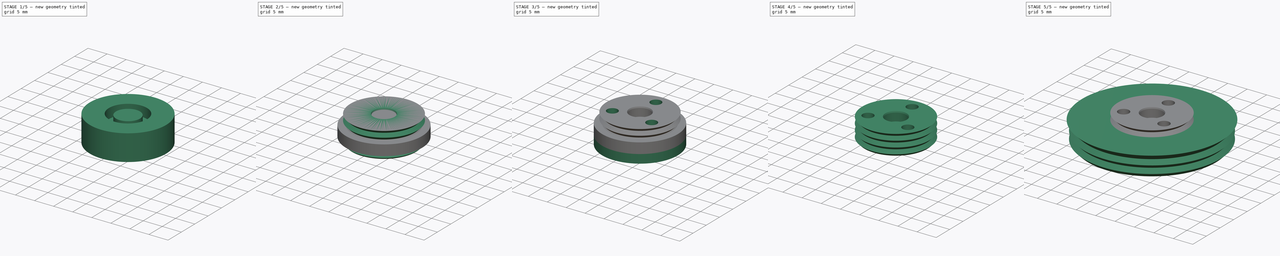
[diagram: build sequence overview — one tinted view per stage of 5, left to right]
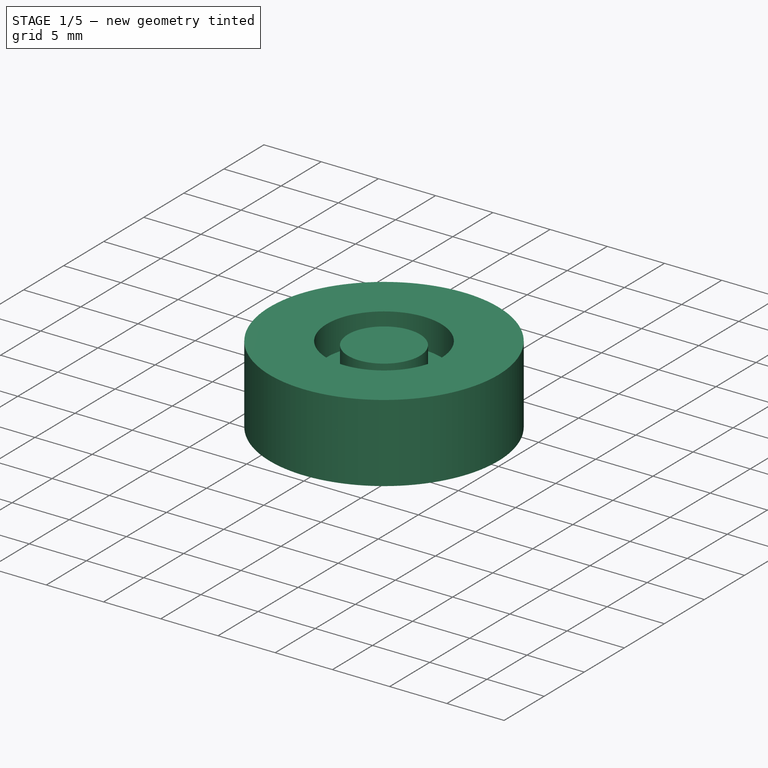
[diagram: stage 1 of 5 — iso view after this stage's code; geometry added in this stage tinted green]
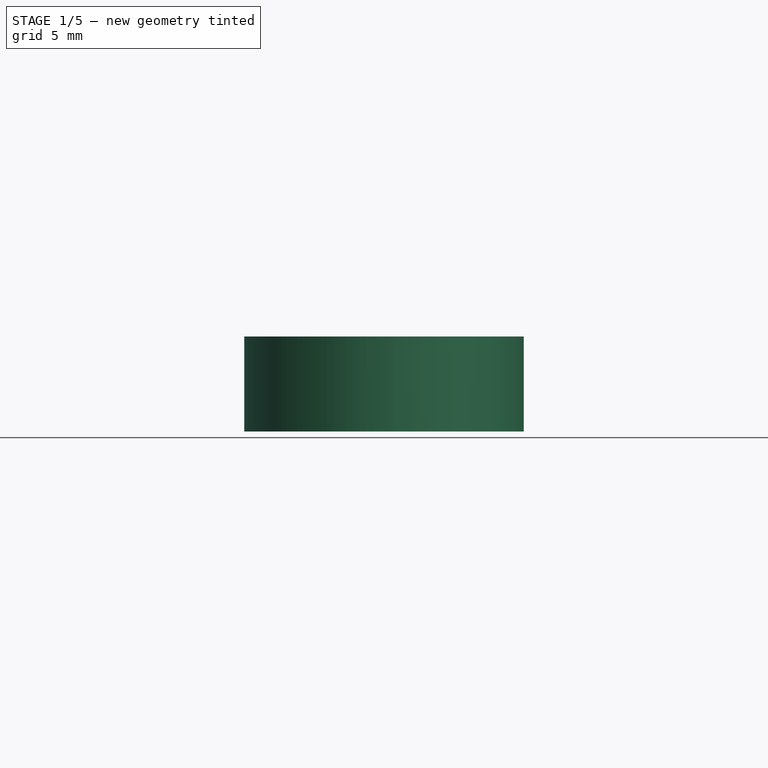
[diagram: stage 1 of 5 — front view after this stage's code; geometry added in this stage tinted green]
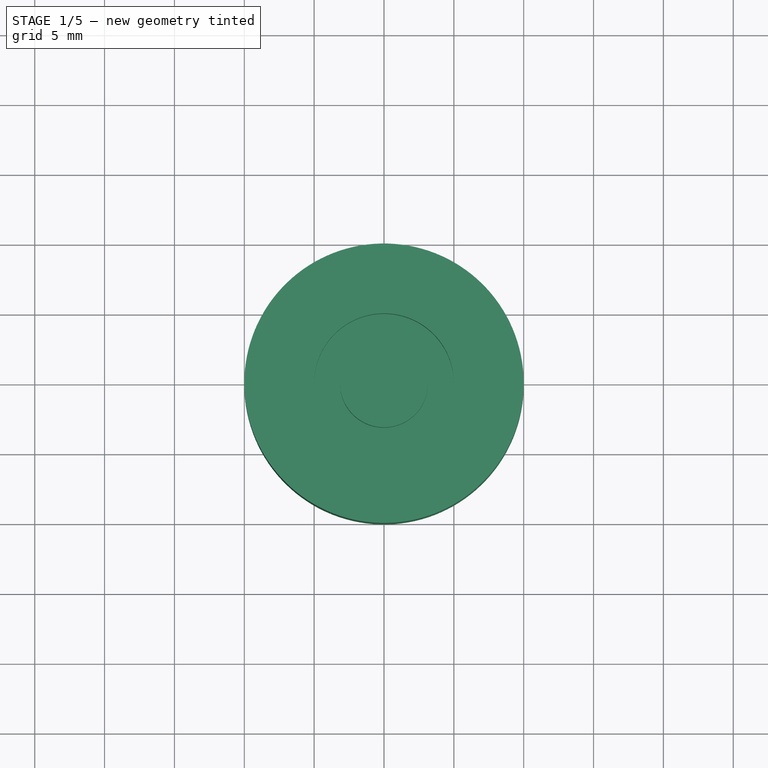
[diagram: stage 1 of 5 — top view after this stage's code; geometry added in this stage tinted green]
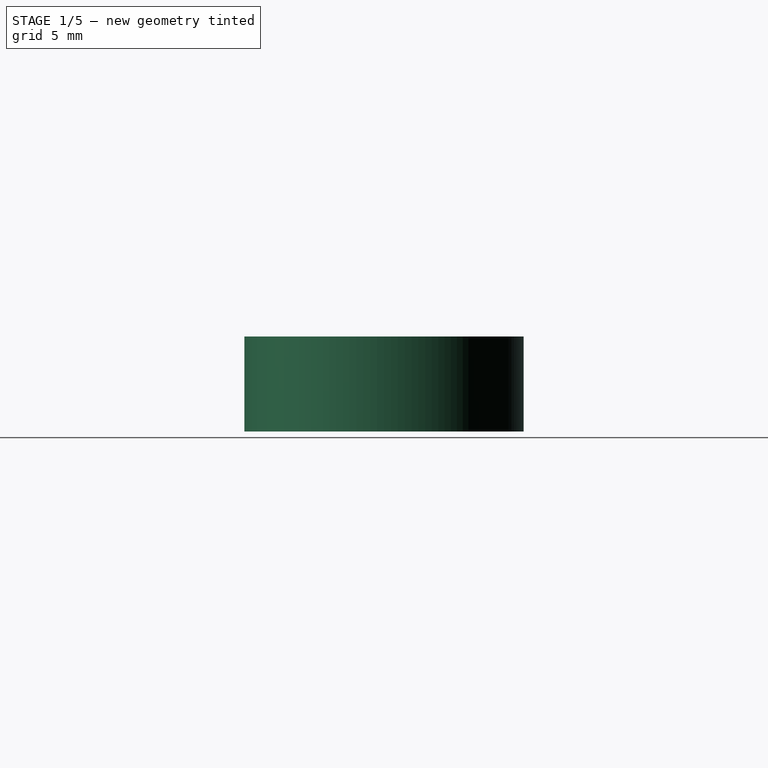
[diagram: stage 1 of 5 — right view after this stage's code; geometry added in this stage tinted green]
FCSTD DOCUMENT  (FreeCAD 0.16RUnknown)
Label: LAQ0202nLAP0617
License: All rights reserved
LicenseURL: http://en.wikipedia.org/wiki/All_rights_reserved
objects: Part::FeaturePython×14, Sketcher::SketchObject×8, PartDesign::Revolution×7, Part::Cut×5, App::DocumentObjectGroup×5, Part::MultiCommon×3, Spreadsheet::Sheet×1, Part::MultiFuse×1, Part::Cylinder×1
note: 46 computed .brp shape members not serialized (recipe doc carries the construction recipe); baked Part::Feature solids carry a one-line shape summary decoded from their .brp

FEATURE [Sketcher::SketchObject] Sketch002  label="InnerGrooveDom"
  Placement = pos=(0,0,0) rot=(1,0,0;1.5708rad)
  sketch-geometry (4):
    g0: LineSegment StartX=5 StartY=7.2 StartZ=0 EndX=10 EndY=7.2 EndZ=0
    g1: LineSegment StartX=10 StartY=7.2 StartZ=0 EndX=10 EndY=0.4 EndZ=0
    g2: LineSegment StartX=10 StartY=0.4 StartZ=0 EndX=5 EndY=0.4 EndZ=0
    g3: LineSegment StartX=5 StartY=0.4 StartZ=0 EndX=5 EndY=7.2 EndZ=0
  constraints (12):
    c: Coincident(g0,g1)
    c: Coincident(g1,g2)
    c: Coincident(g2,g3)
    c: Coincident(g3,g0)
    c: Horizontal(g0)
    c: Horizontal(g2)
    c: Vertical(g1)
    c: Vertical(g3)
    c: DistanceX(g0) = 5
    c: DistanceY(g0) = 7.2
    c: DistanceY(g2) = 0.4
    c: DistanceX(g0) = 10
FEATURE [PartDesign::Revolution] Revolution002  label="InnerGrooveDom001"
  Angle = 360
  Axis = (0,0,1)
  Base = (0,0,0)
  Placement = pos=(0,0,0) rot=(1,0,0;1.5708rad)
  ReferenceAxis = -> Sketch002 [V_Axis]
  Reversed = true
  Sketch = -> Sketch002
FEATURE [Sketcher::SketchObject] Sketch007  label="LAQ0201"
  Placement = pos=(0,0,0) rot=(1,0,0;1.5708rad)
  expr: Constraints[12] = LAQ0202nPS2LongLong.Constraints.LAQPos
  sketch-geometry (6):
    g0: ArcOfCircle CenterX=0 CenterY=0.937428 CenterZ=0 NormalX=0 NormalY=0 NormalZ=1 Radius=1.7281 StartAngle=0.519629 EndAngle=1.5708
    g1: LineSegment StartX=0 StartY=2.66553 StartZ=0 EndX=0 EndY=0.795532 EndZ=0
    g2: LineSegment StartX=1.5 StartY=1.79553 StartZ=0 EndX=1.5 EndY=0.795532 EndZ=0
    g3: GeomPoint [constr] X=0 Y=3.75553 Z=0
    g4: GeomPoint [constr] X=0 Y=1.75553 Z=0
    g5: LineSegment StartX=0 StartY=0.795532 StartZ=0 EndX=1.5 EndY=0.795532 EndZ=0
  constraints (19):
    c: Coincident(g0,g2)
    c: Coincident(g0,g1)
    c: Vertical(g2)
    c: Vertical(g1)
    c: PointOnObject(g0,g1)
    c: PointOnObject(g0,g-2)
    c: DistanceY(g1,g1) = 1.87
    c: DistanceX(g2) = 1.5
    c: PointOnObject(g3,g1)
    c: PointOnObject(g4,g1)
    c: DistanceY(g4,g3) = 2
    c: DistanceY(g0,g3) = 1.09
    c: DistanceY(g4) = 1.75553
    c: Coincident(g2,g5)
    c: Coincident(g1,g5)
    c: Horizontal(g5)
    c: DistanceY(g2,g2) = 1
    c: DistanceY(g0) = 1.79553  'LAQEdge'
    c: DistanceY(g0) = 2.66553  'LAQtop'
FEATURE [PartDesign::Revolution] Revolution006  label="LAQ"
  Angle = 360
  Axis = (0,0,1)
  Base = (0,0,0)
  Placement = pos=(0,0,0) rot=(1,0,0;1.5708rad)
  ReferenceAxis = -> Sketch007 [V_Axis]
  Reversed = true
  Sketch = -> Sketch007
FEATURE [Part::FeaturePython] Clone008  label="Clone of LAQ"  # Draft clone (typed FeaturePython)
  Objects = -> [Revolution006]
  Placement = pos=(0,0,0) rot=(1,0,0;1.5708rad)
  Scale = (1,1,1)
FEATURE [Sketcher::SketchObject] Sketch017  label="LAQ0202nPS2Long"
  Placement = pos=(0,0,0) rot=(1,0,0;1.5708rad)
  sketch-geometry (21):
    g0: LineSegment StartX=-1 StartY=1.72674 StartZ=0 EndX=1 EndY=1.72674 EndZ=0
    g1: GeomPoint [constr] X=0 Y=3.72674 Z=0
    g2: LineSegment StartX=0 StartY=0 StartZ=0 EndX=0.2 EndY=0 EndZ=0
    g3: LineSegment [constr] StartX=0 StartY=3.72674 StartZ=0 EndX=0.2 EndY=1.72674 EndZ=0
    g4: LineSegment [constr] StartX=0.2 StartY=1.72674 StartZ=0 EndX=0.2 EndY=0 EndZ=0
    g5: LineSegment [constr] StartX=0.2 StartY=0 StartZ=0 EndX=0 EndY=1.72674 EndZ=0
    g6: LineSegment StartX=0 StartY=-10.9114 StartZ=0 EndX=1.46381 EndY=-10.9114 EndZ=0
    g7: LineSegment StartX=4 StartY=5.72674 StartZ=0 EndX=-4 EndY=5.72674 EndZ=0
    g8: LineSegment [constr] StartX=0 StartY=5.72674 StartZ=0 EndX=1.46381 EndY=-10.9114 EndZ=0
    g9: LineSegment [constr] StartX=1.46381 StartY=-10.9114 StartZ=0 EndX=1.46381 EndY=5.72674 EndZ=0
    g10: LineSegment [constr] StartX=1.46381 StartY=5.72674 StartZ=0 EndX=0 EndY=23.1267 EndZ=0
    g11: LineSegment StartX=0 StartY=-374.273 StartZ=0 EndX=33.4322 EndY=-374.273 EndZ=0
    g12: LineSegment StartX=-2 StartY=6.72674 StartZ=0 EndX=2 EndY=6.72674 EndZ=0
    g13: LineSegment StartX=0 StartY=0 StartZ=0 EndX=1 EndY=1.72674 EndZ=0
    g14: LineSegment [constr] StartX=0 StartY=5.72674 StartZ=0 EndX=1 EndY=1.72674 EndZ=0
    g15: LineSegment [constr] StartX=1 StartY=1.72674 StartZ=0 EndX=1 EndY=5.72674 EndZ=0
    g16: LineSegment [constr] StartX=1 StartY=5.72674 StartZ=0 EndX=0 EndY=23.1267 EndZ=0
    g17: LineSegment StartX=0 StartY=0.532712 StartZ=0 EndX=1.29851 EndY=0.532712 EndZ=0
    g18: LineSegment [constr] StartX=8 StartY=1.72674 StartZ=0 EndX=2 EndY=6.72674 EndZ=0
    g19: GeomPoint [constr] X=0 Y=8.39341 Z=0
    g20: LineSegment StartX=0 StartY=8.39341 StartZ=0 EndX=63.2127 EndY=-374.273 EndZ=0
  constraints (68):
    c: Symmetric(g0,g0,g-2)
    c: DistanceX(g0,g0) = 2
    c: PointOnObject(g1,g-2)
    c: DistanceY(g0,g1) = 2
    c: DistanceX(g2,g2) = 0.2  'Constraint19'
    c: Horizontal(g2)  'Constraint26'
    c: PointOnObject(g2,g-2)  'Constraint24'
    c: DistanceY(g2) = 0  'Constraint23'
    c: DistanceY(g0) = 1.72674  'LAQPos'
    c: PointOnObject(g5,g0)
    c: PointOnObject(g5,g-2)
    c: Coincident(g3,g4)
    c: PointOnObject(g3,g0)
    c: Vertical(g4)
    c: Coincident(g4,g5)
    c: Coincident(g2,g4)
    c: Coincident(g1,g3)
    c: PointOnObject(g6,g-2)
    c: Horizontal(g6)
    c: PointOnObject(g6,g3)
    c: PointOnObject(g6,g5)
    c: DistanceY(g6) = -10.9114
    c: DistanceX(g6,g6) = 1.46381
    c: Symmetric(g7,g7,g-2)
    c: Coincident(g8,g9)
    c: Coincident(g9,g10)
    c: PointOnObject(g8,g7)
    c: PointOnObject(g8,g-2)
    c: Vertical(g9)
    c: PointOnObject(g9,g7)
    c: Coincident(g8,g6)
    c: PointOnObject(g10,g-2)
    c: DistanceY(g7,g10) = 17.4
    c: DistanceY(g0,g7) = 4
    c: DistanceY(g7) = 5.72674  'PS2Pos'
    c: Horizontal(g11)
    c: PointOnObject(g11,g10)
    c: PointOnObject(g11,g8)
    c: DistanceY(g11,g7) = 380
    c: PointOnObject(g11,g-2)
    c: DistanceX(g7,g7) = 8
    c: DistanceX(g11,g11) = 33.4322  'Final'
    c: Symmetric(g12,g12,g-2)
    c: DistanceX(g12,g12) = 4
    c: DistanceY(g7,g12) = 1
    c: Coincident(g13,g-1)
    c: PointOnObject(g13,g0)
    c: DistanceX(g13) = 1
    c: Coincident(g14,g15)
    c: Coincident(g15,g16)
    c: Coincident(g10,g16)
    c: PointOnObject(g15,g7)
    c: Vertical(g15)
    c: Coincident(g8,g14)
    c: Coincident(g14,g0)
    c: PointOnObject(g17,g-2)
    c: Horizontal(g17)
    c: PointOnObject(g17,g14)
    c: PointOnObject(g17,g16)
    c: Coincident(g18,g12)
    c: DistanceY(g18,g18) = 5
    c: DistanceX(g18) = 8
    c: PointOnObject(g19,g18)
    c: PointOnObject(g19,g-2)
    c: Coincident(g19,g20)
    c: PointOnObject(g17,g20)
    c: PointOnObject(g20,g11)
    c: DistanceY(g0,g7) = 4
FEATURE [Sketcher::SketchObject] Sketch018  label="PS2Long"
  Placement = pos=(0,0,0) rot=(1,0,0;1.5708rad)
  expr: Constraints[12] = LAQ0202nPS2Long.Constraints.PS2Pos
  sketch-geometry (5):
    g0: LineSegment StartX=0 StartY=6.87674 StartZ=0 EndX=3.15 EndY=6.87674 EndZ=0
    g1: LineSegment StartX=3.15 StartY=6.87674 StartZ=0 EndX=3.15 EndY=4.57674 EndZ=0
    g2: LineSegment StartX=3.15 StartY=4.57674 StartZ=0 EndX=0 EndY=4.57674 EndZ=0
    g3: LineSegment StartX=0 StartY=4.57674 StartZ=0 EndX=0 EndY=6.87674 EndZ=0
    g4: GeomPoint [constr] X=0 Y=5.72674 Z=0
  constraints (14):
    c: Coincident(g0,g1)
    c: Coincident(g1,g2)
    c: Coincident(g2,g3)
    c: Coincident(g3,g0)
    c: Horizontal(g0)
    c: Horizontal(g2)
    c: Vertical(g1)
    c: Vertical(g3)
    c: DistanceY(g3,g3) = 2.3
    c: DistanceX(g0,g0) = 3.15
    c: PointOnObject(g2,g-2)
    c: Symmetric(g0,g2,g4)
    c: DistanceY(g4) = 5.72674
    c: DistanceY(g2) = 4.57674  'PS2Lower'
FEATURE [PartDesign::Revolution] Revolution007  label="PS2Long001"
  Angle = 360
  Axis = (0,0,1)
  Base = (0,0,0)
  Placement = pos=(0,0,0) rot=(1,0,0;1.5708rad)
  ReferenceAxis = -> Sketch018 [V_Axis]
  Reversed = true
  Sketch = -> Sketch018
FEATURE [App::DocumentObjectGroup] Group  label="Reference"
  Group = -> [Revolution006,Sketch017,FlexiRing_01]
FEATURE [Sketcher::SketchObject] Sketch019  label="MiddleDom"
  Placement = pos=(0,0,0) rot=(1,0,0;1.5708rad)
  expr: Constraints[9] = PS2Long.Constraints.PS2Lower
  expr: Constraints[8] = LAQ0201.Constraints.LAQEdge
  sketch-geometry (4):
    g0: LineSegment StartX=0 StartY=4.57674 StartZ=0 EndX=10 EndY=4.57674 EndZ=0
    g1: LineSegment StartX=10 StartY=4.57674 StartZ=0 EndX=10 EndY=1.79553 EndZ=0
    g2: LineSegment StartX=10 StartY=1.79553 StartZ=0 EndX=0 EndY=1.79553 EndZ=0
    g3: LineSegment StartX=0 StartY=1.79553 StartZ=0 EndX=0 EndY=4.57674 EndZ=0
  constraints (12):
    c: Coincident(g0,g1)
    c: Coincident(g1,g2)
    c: Coincident(g2,g3)
    c: Coincident(g3,g0)
    c: Horizontal(g0)
    c: Horizontal(g2)
    c: Vertical(g1)
    c: Vertical(g3)
    c: DistanceY(g2) = 1.79553
    c: DistanceY(g0) = 4.57674
    c: PointOnObject(g2,g-2)
    c: DistanceX(g0) = 10
FEATURE [PartDesign::Revolution] Revolution008  label="MiddleDom001"
  Angle = 360
  Axis = (0,0,1)
  Base = (0,0,0)
  Placement = pos=(0,0,0) rot=(1,0,0;1.5708rad)
  ReferenceAxis = -> Sketch019 [V_Axis]
  Reversed = true
  Sketch = -> Sketch019
FEATURE [Part::FeaturePython] Clone010  label="Clone of MiddleDom001"  # Draft clone (typed FeaturePython)
  Objects = -> [Revolution008]
  Placement = pos=(0,0,0) rot=(1,0,0;1.5708rad)
  Scale = (1,1,1)
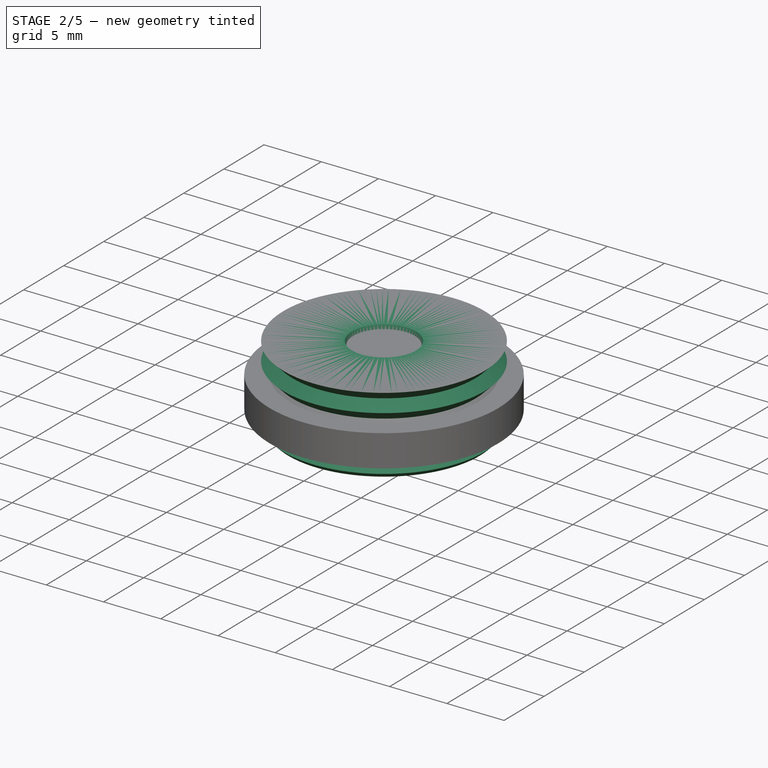
[diagram: stage 2 of 5 — iso view after this stage's code; geometry added in this stage tinted green]
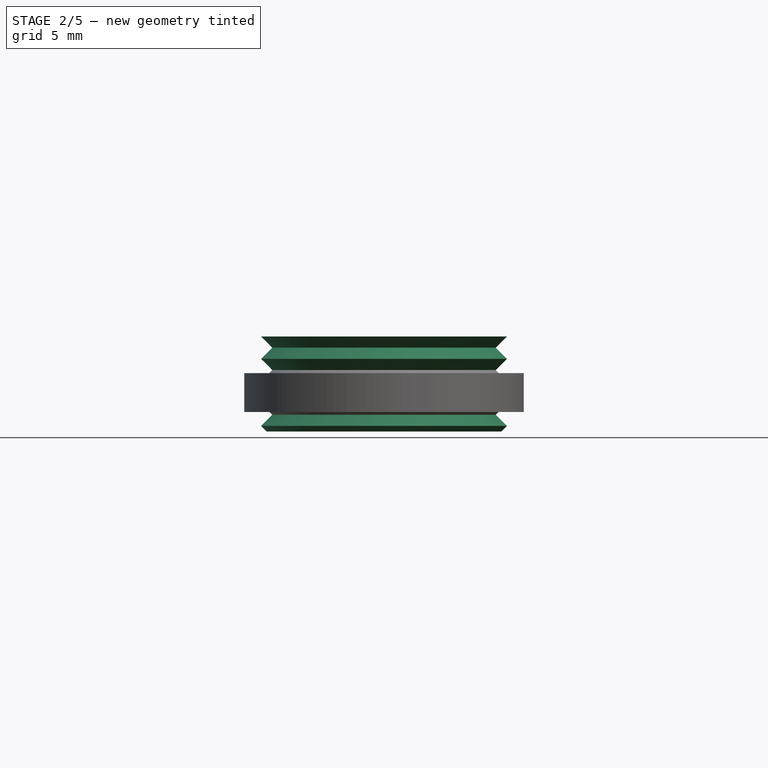
[diagram: stage 2 of 5 — front view after this stage's code; geometry added in this stage tinted green]
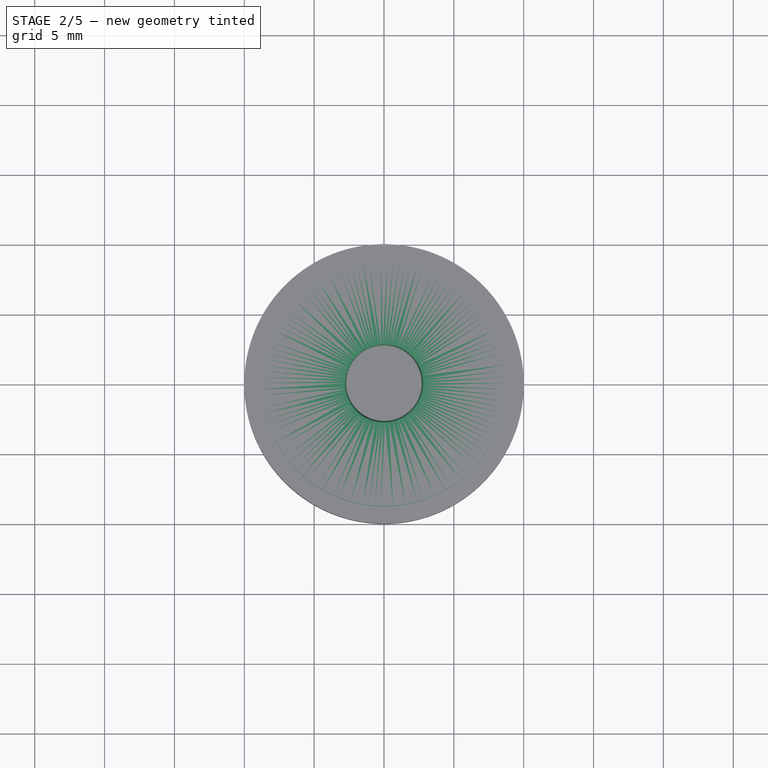
[diagram: stage 2 of 5 — top view after this stage's code; geometry added in this stage tinted green]
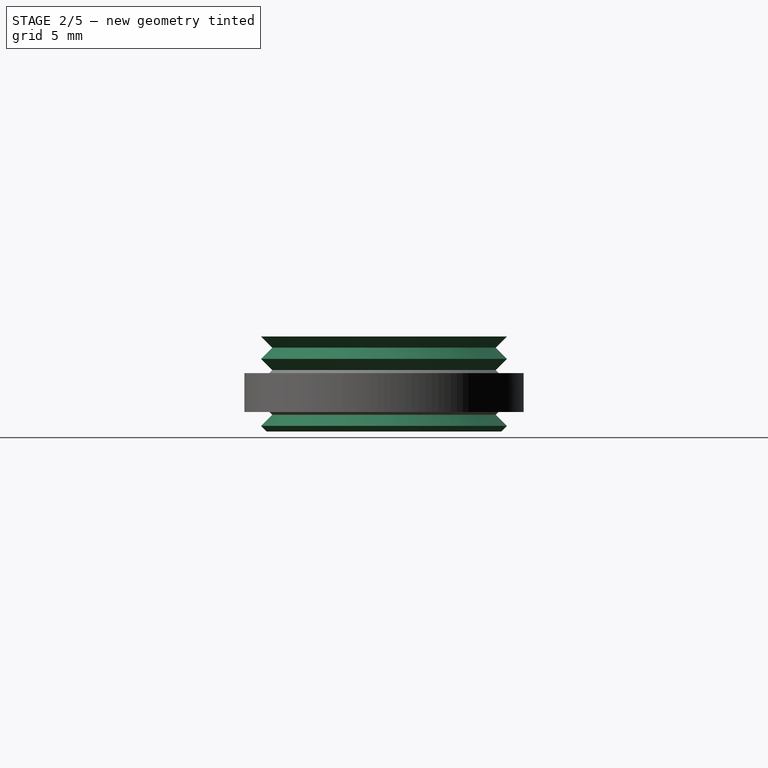
[diagram: stage 2 of 5 — right view after this stage's code; geometry added in this stage tinted green]
FEATURE [Spreadsheet::Sheet] Spreadsheet  label="pars"
  cells = A1=Bolts and Nuts; B1=Value; D1=Components; E1=Value; A2=Thread Tight Tolerance (Radius, ratio); B2(ThrTighRatio)=0.96; D2=Tight Cilinder Tolerances (Radius, mm); E2(CilTight)=0.1; A3=Thread Tight Tolerance (Radius, mm); B3(ThrTightmm)=0.1; D3=Loose Cilinder Tolerances (Radius, mm); E3(CilLoose)=0.1; A5=Nut Slot Width Clearance (mm); B5(NutWidthClearmm)=0.1; A6=Nut Slot Thickess Clearance (mm); B6(NutThickClearmm)=0.1; A13=Particular parameters; B13=Value; A14=Plate Thickness; B14(PlateThick)=4; A15=Lip Thickness; B15(LipThick)=0.8; A16=Channel Diameter; B16(ChanDia)=2.5; A17=Lens Radius Clearance; B17(LensRadClear)=0.05; A18=Lens Lenght Clearance; B18(LensLenClear)=0.05
FEATURE [Sketcher::SketchObject] Sketch  label="Main"
  Placement = pos=(0,0,0) rot=(1,0,0;1.5708rad)
  sketch-geometry (5):
    g0: LineSegment StartX=1.2 StartY=0.4 StartZ=0 EndX=8 EndY=0.4 EndZ=0
    g1: LineSegment StartX=8 StartY=0.4 StartZ=0 EndX=8 EndY=7.2 EndZ=0
    g2: LineSegment StartX=8 StartY=7.2 StartZ=0 EndX=2.8 EndY=7.2 EndZ=0
    g3: LineSegment StartX=1.2 StartY=0.4 StartZ=0 EndX=1.2 EndY=2.2 EndZ=0
    g4: LineSegment StartX=1.2 StartY=2.2 StartZ=0 EndX=2.8 EndY=7.2 EndZ=0
  constraints (15):
    c: Coincident(g0,g1)
    c: Horizontal(g2)
    c: Horizontal(g0)
    c: Vertical(g1)
    c: DistanceX(g1) = 8
    c: DistanceX(g0) = 1.2
    c: Coincident(g1,g2)
    c: Coincident(g3,g4)
    c: Coincident(g2,g4)
    c: Vertical(g3)
    c: Coincident(g0,g3)
    c: DistanceY(g0) = 0.4
    c: DistanceX(g2) = 2.8
    c: DistanceY(g3) = 2.2
    c: DistanceY(g1) = 7.2
FEATURE [PartDesign::Revolution] Revolution  label="Main001"
  Angle = 360
  Axis = (0,0,1)
  Base = (0,0,0)
  Placement = pos=(0,0,0) rot=(1,0,0;1.5708rad)
  ReferenceAxis = -> Sketch [V_Axis]
  Reversed = true
  Sketch = -> Sketch
FEATURE [Sketcher::SketchObject] Sketch001  label="OuterGroove"
  Placement = pos=(0,0,0) rot=(1,0,0;1.5708rad)
  sketch-geometry (6):
    g0: LineSegment StartX=4 StartY=8 StartZ=0 EndX=4 EndY=6.4 EndZ=0
    g1: LineSegment StartX=4 StartY=6.4 StartZ=0 EndX=8 EndY=6.4 EndZ=0
    g2: LineSegment StartX=8 StartY=6.4 StartZ=0 EndX=8.8 EndY=7.2 EndZ=0
    g3: LineSegment StartX=8.8 StartY=7.2 StartZ=0 EndX=8 EndY=8 EndZ=0
    g4: LineSegment StartX=8 StartY=8 StartZ=0 EndX=4 EndY=8 EndZ=0
    g5: LineSegment [constr] StartX=4 StartY=7.2 StartZ=0 EndX=8.8 EndY=7.2 EndZ=0
  constraints (17):
    c: Coincident(g0,g1)
    c: Coincident(g1,g2)
    c: Coincident(g2,g3)
    c: Coincident(g3,g4)
    c: Coincident(g4,g0)
    c: Horizontal(g5)
    c: Horizontal(g1)
    c: Horizontal(g4)
    c: Vertical(g0)
    c: Perpendicular(g2,g3)
    c: PointOnObject(g5,g0)
    c: Coincident(g5,g2)
    c: Symmetric(g3,g1,g5)
    c: DistanceY(g0,g0) = 1.6
    c: DistanceX(g0) = 4
    c: DistanceY(g0) = 8
    c: DistanceX(g3) = 8
FEATURE [PartDesign::Revolution] Revolution001  label="OuterGroove001"
  Angle = 360
  Axis = (0,0,1)
  Base = (0,0,0)
  Placement = pos=(0,0,0) rot=(1,0,0;1.5708rad)
  ReferenceAxis = -> Sketch001 [V_Axis]
  Reversed = true
  Sketch = -> Sketch001
FEATURE [Part::FeaturePython] Array  label="OuterGrooves"  # Draft array (typed FeaturePython)
  Angle = 360
  ArrayType = 0
  Axis = (0,0,1)
  Base = -> Revolution001
  Center = (0,0,0)
  Fuse = true
  IntervalAxis = (0,0,0)
  IntervalX = (1,0,0)
  IntervalY = (0,1,0)
  IntervalZ = (0,0,-1.6)
  NumberPolar = 1
  NumberX = 1
  NumberY = 1
  NumberZ = 6
FEATURE [Part::MultiCommon] Common  label="InnerGrooveTool"
  Shapes = -> [Array,Revolution002]
FEATURE [Part::MultiFuse] Fusion001  label="GrooveAdd"
  Shapes = -> [Revolution,Common]
FEATURE [Part::FeaturePython] refine  label="refine_GrooveAdd"  # WARN: FeaturePython — macro-defined, semantics opaque (R4)
  Base = -> Fusion001
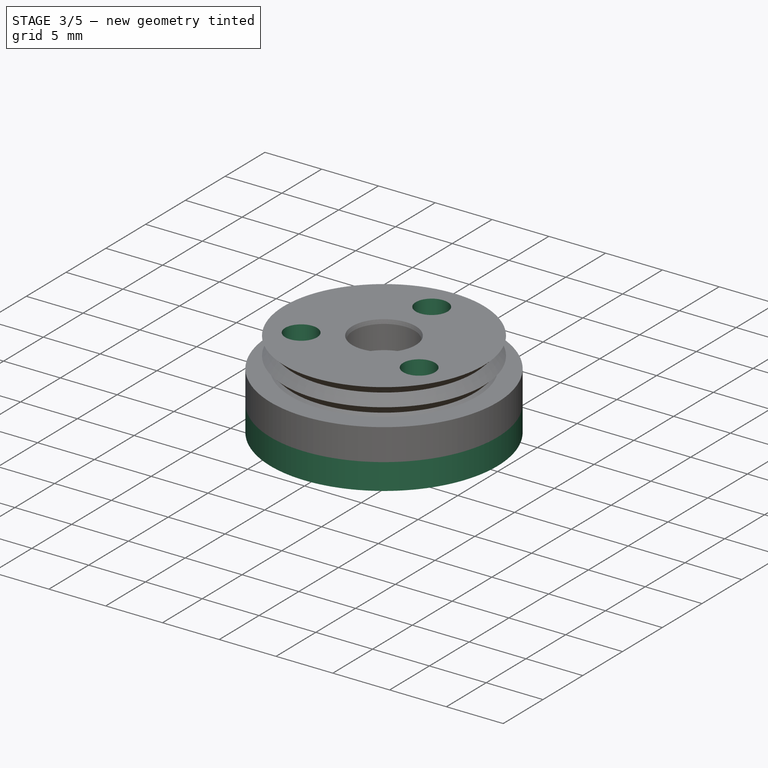
[diagram: stage 3 of 5 — iso view after this stage's code; geometry added in this stage tinted green]
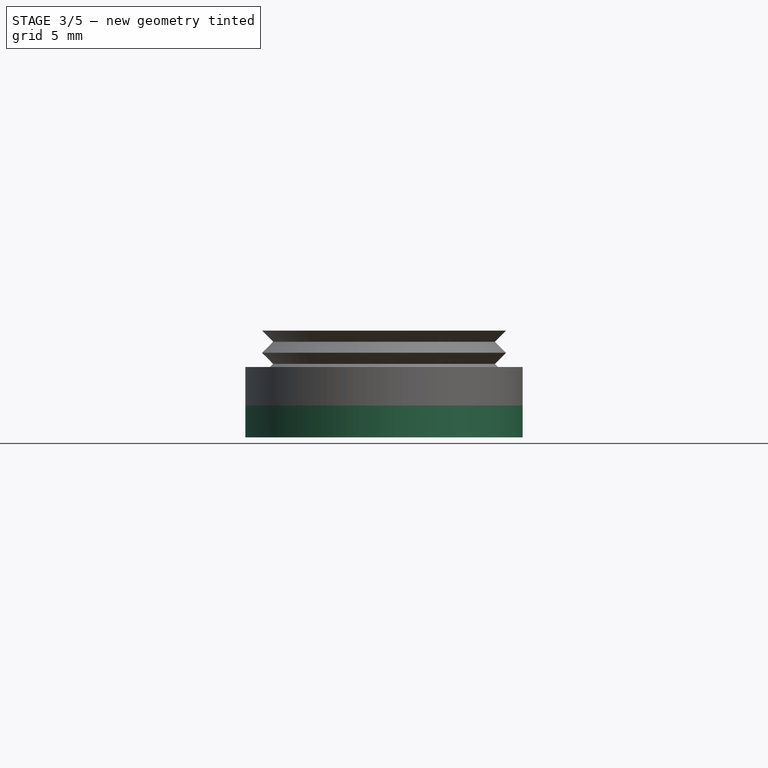
[diagram: stage 3 of 5 — front view after this stage's code; geometry added in this stage tinted green]
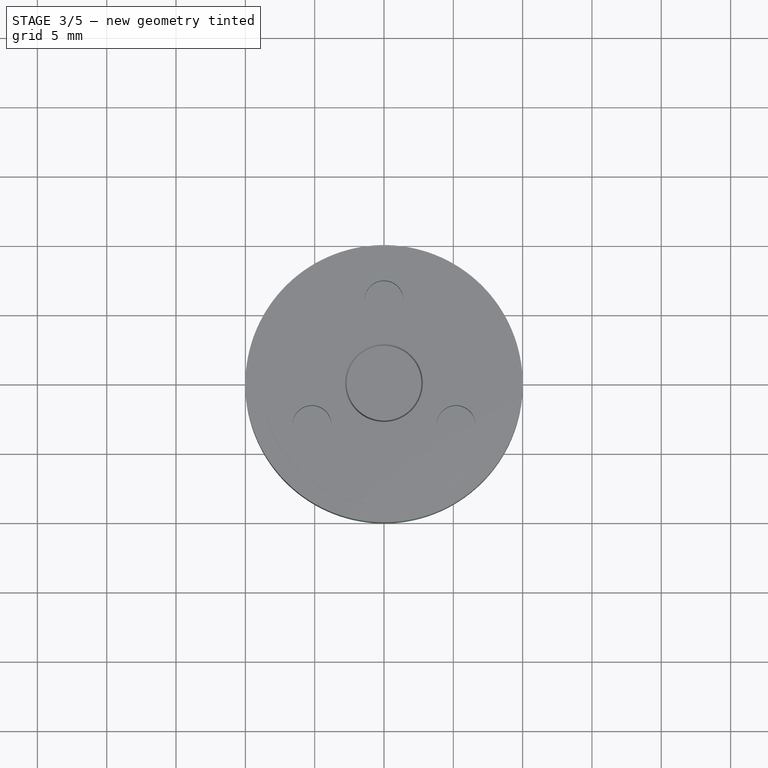
[diagram: stage 3 of 5 — top view after this stage's code; geometry added in this stage tinted green]
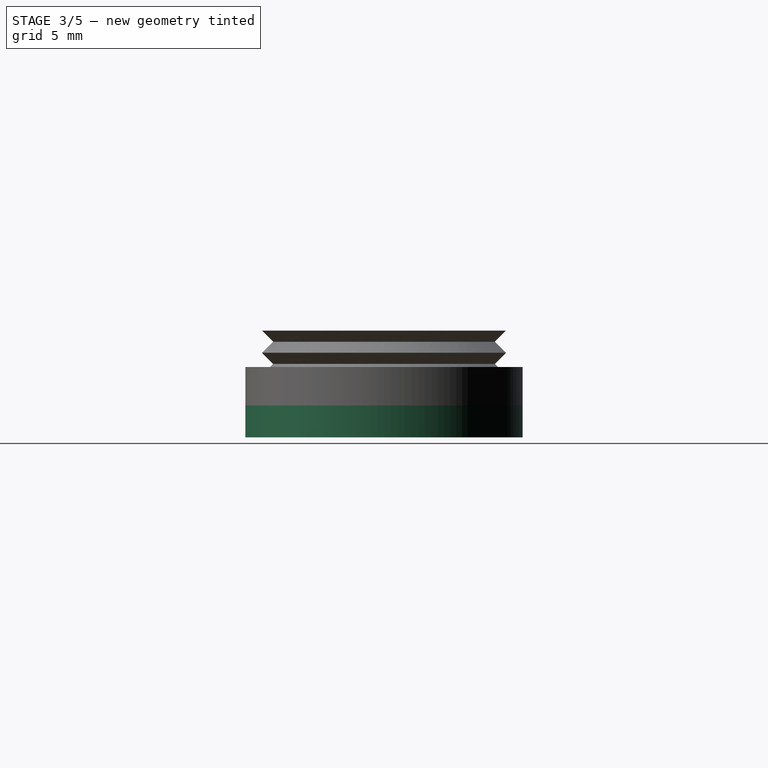
[diagram: stage 3 of 5 — right view after this stage's code; geometry added in this stage tinted green]
FEATURE [Sketcher::SketchObject] Sketch005  label="LowerDomain"
  Placement = pos=(0,0,0) rot=(1,0,0;1.5708rad)
  expr: Constraints[10] = LAQ0201.Constraints.LAQEdge
  sketch-geometry (4):
    g0: LineSegment StartX=10 StartY=-0.5 StartZ=0 EndX=0 EndY=-0.5 EndZ=0
    g1: LineSegment StartX=0 StartY=-0.5 StartZ=0 EndX=0 EndY=1.79553 EndZ=0
    g2: LineSegment StartX=0 StartY=1.79553 StartZ=0 EndX=10 EndY=1.79553 EndZ=0
    g3: LineSegment StartX=10 StartY=1.79553 StartZ=0 EndX=10 EndY=-0.5 EndZ=0
  constraints (12):
    c: Coincident(g0,g1)
    c: Coincident(g1,g2)
    c: Coincident(g2,g3)
    c: Coincident(g3,g0)
    c: Horizontal(g0)
    c: Horizontal(g2)
    c: Vertical(g1)
    c: Vertical(g3)
    c: PointOnObject(g0,g-2)
    c: DistanceY(g0) = -0.5
    c: DistanceY(g1) = 1.79553
    c: DistanceX(g0,g0) = 10
FEATURE [PartDesign::Revolution] Revolution004  label="LowerDomain001"
  Angle = 360
  Axis = (0,0,1)
  Base = (0,0,0)
  Placement = pos=(0,0,0) rot=(1,0,0;1.5708rad)
  ReferenceAxis = -> Sketch005 [V_Axis]
  Reversed = true
  Sketch = -> Sketch005
FEATURE [Part::Cylinder] Cylinder  label="BoltHole"
  Angle = 360
  Height = 10
  Placement = pos=(0,6,-1) rot=(0,0,1;0rad)
  Radius = 1.4
FEATURE [Part::FeaturePython] Array001  label="BoltHoles"  # Draft array (typed FeaturePython)
  Angle = 360
  ArrayType = 1
  Axis = (0,0,1)
  Base = -> Cylinder
  Center = (0,0,0)
  Fuse = false
  IntervalAxis = (0,0,0)
  IntervalX = (1,0,0)
  IntervalY = (0,1,0)
  IntervalZ = (0,0,0)
  NumberPolar = 3
  NumberX = 2
  NumberY = 2
  NumberZ = 1
FEATURE [Part::FeaturePython] Clone004  label="Clone of LowerDomain001"  # Draft clone (typed FeaturePython)
  Objects = -> [Revolution004]
  Placement = pos=(0,0,0) rot=(1,0,0;1.5708rad)
  Scale = (1,1,1)
FEATURE [Part::Cut] Cut  label="LensCut"
  Base = -> refine
  Tool = -> Clone008
FEATURE [Part::Cut] Cut003  label="LensCut001"
  Base = -> Cut
  Tool = -> Revolution007
FEATURE [Part::Cut] Cut001  label="BoltHoles001"
  Base = -> Cut003
  Tool = -> Array001
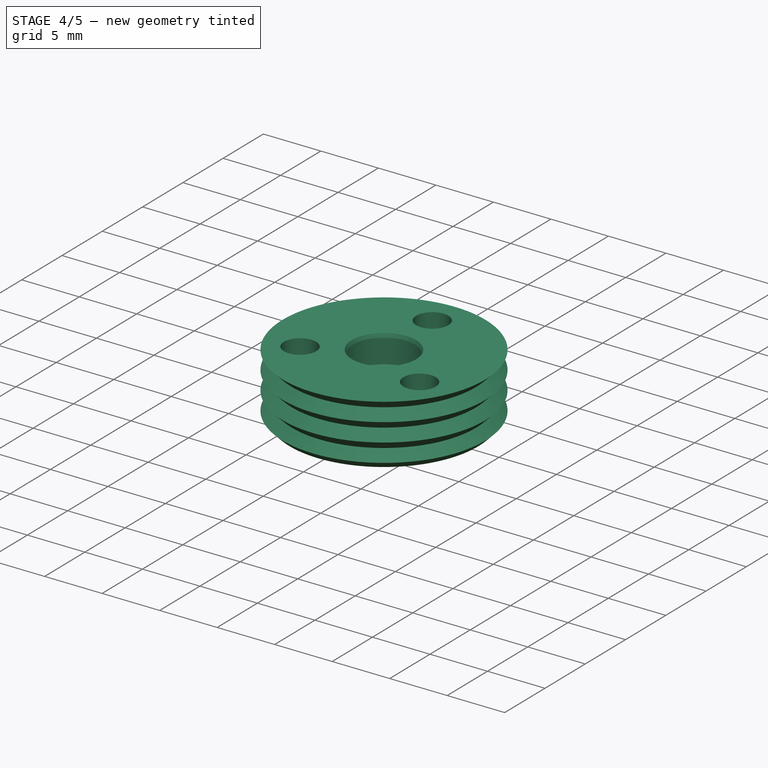
[diagram: stage 4 of 5 — iso view after this stage's code; geometry added in this stage tinted green]
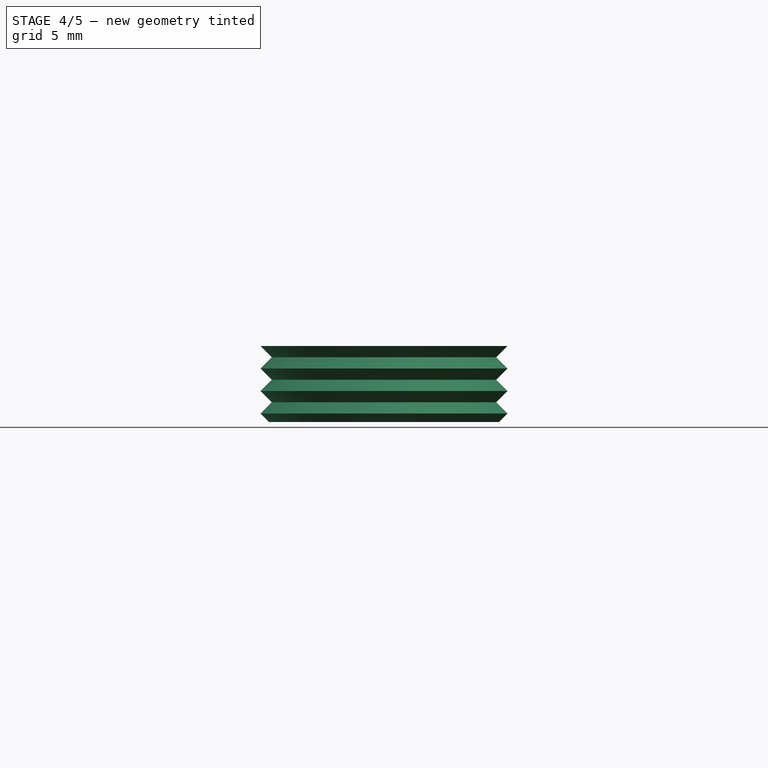
[diagram: stage 4 of 5 — front view after this stage's code; geometry added in this stage tinted green]
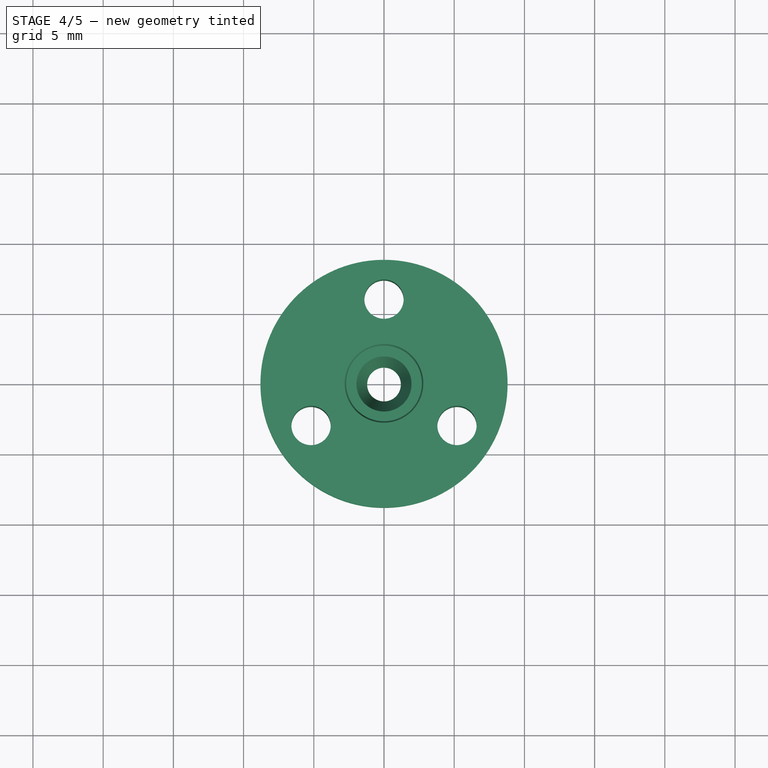
[diagram: stage 4 of 5 — top view after this stage's code; geometry added in this stage tinted green]
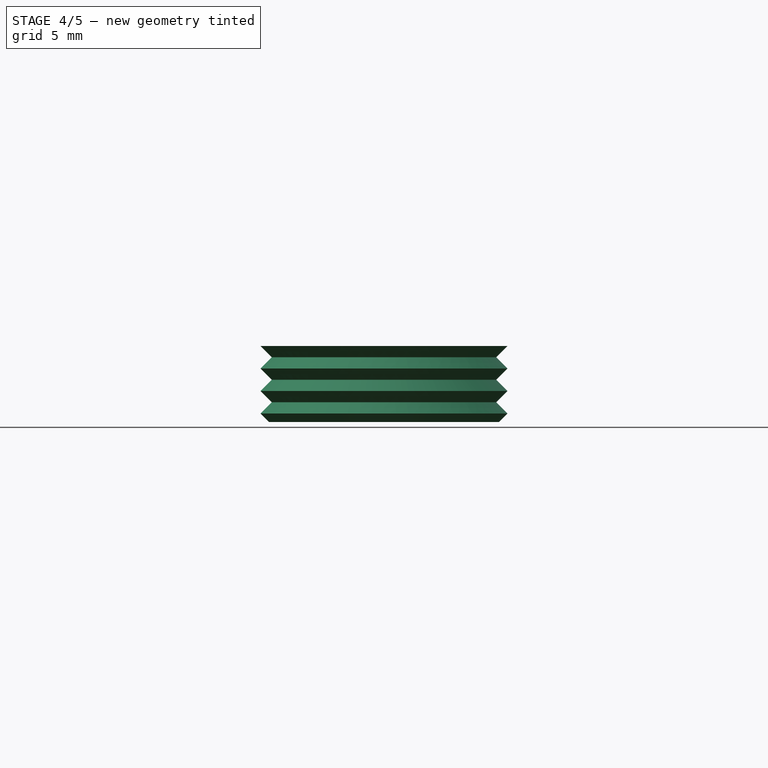
[diagram: stage 4 of 5 — right view after this stage's code; geometry added in this stage tinted green]
FEATURE [Part::FeaturePython] Clone003  label="Clone of BoltHoles002"  # Draft clone (typed FeaturePython)
  Objects = -> [Cut001]
  Scale = (1,1,1)
FEATURE [App::DocumentObjectGroup] Group002  label="Lower_src"
  Group = -> [Common001]
FEATURE [Part::Cut] Cut002  label="MiddleCut"
  Base = -> Clone003
  Tool = -> Clone004
FEATURE [Part::MultiCommon] Common002  label="MiddleCommon"
  Shapes = -> [Cut002,Revolution008]
FEATURE [App::DocumentObjectGroup] Group003  label="MIddle_src"
  Group = -> [Common002,refine001]
FEATURE [Part::FeaturePython] Clone009  label="Clone of MiddleCut"  # Draft clone (typed FeaturePython)
  Objects = -> [Cut002]
  Scale = (1,1,1)
FEATURE [Part::Cut] Cut004  label="UpperCut"
  Base = -> Clone009
  Tool = -> Clone010
FEATURE [Part::FeaturePython] Clone012  label="LAQ0202nLAQ0617Upper"  # Draft clone (typed FeaturePython)
  Objects = -> [Cut004]
  Scale = (1,1,1)
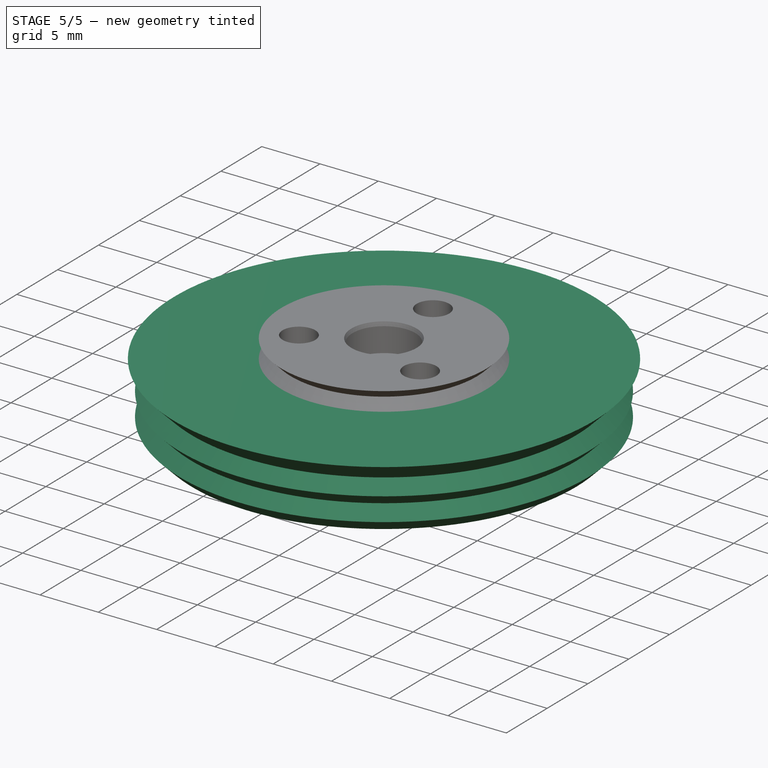
[diagram: stage 5 of 5 — iso view after this stage's code; geometry added in this stage tinted green]
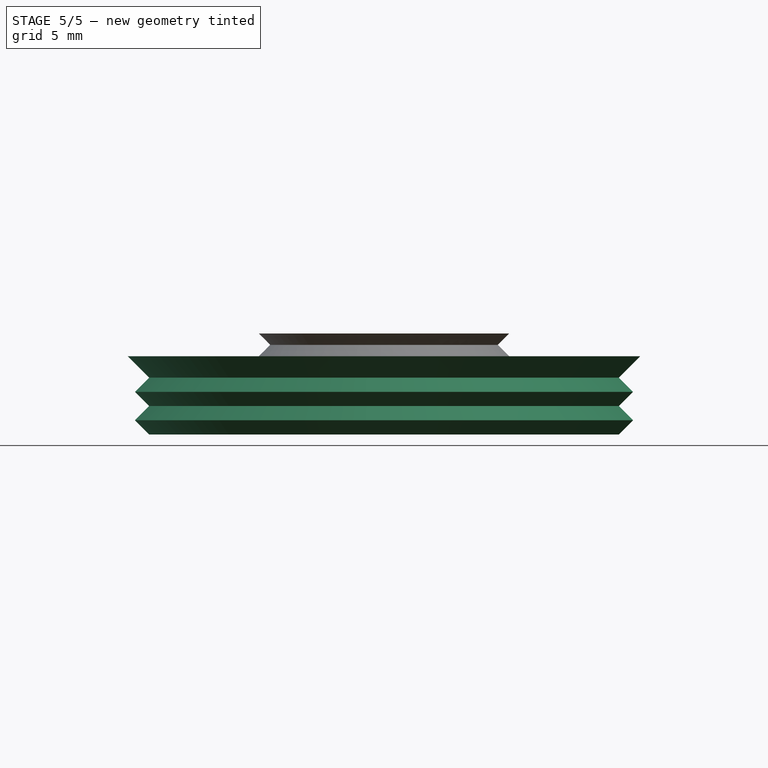
[diagram: stage 5 of 5 — front view after this stage's code; geometry added in this stage tinted green]
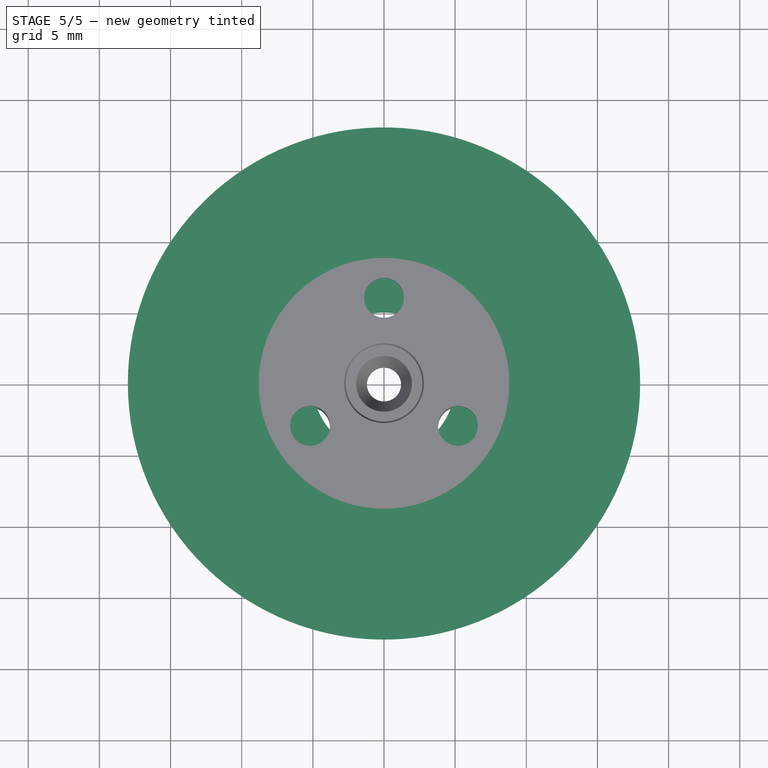
[diagram: stage 5 of 5 — top view after this stage's code; geometry added in this stage tinted green]
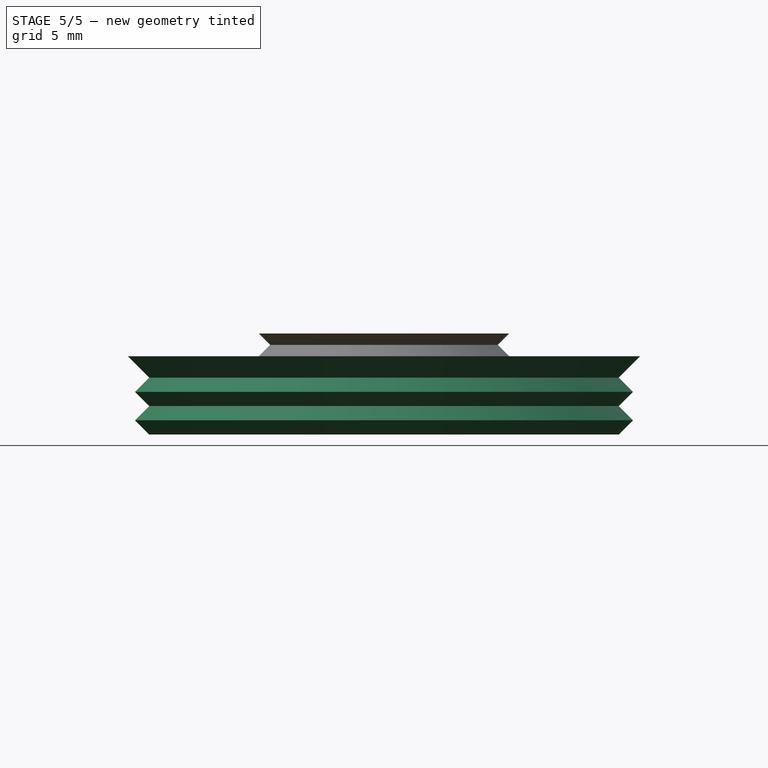
[diagram: stage 5 of 5 — right view after this stage's code; geometry added in this stage tinted green]
FEATURE [App::DocumentObjectGroup] Group001  label="src"
  Group = -> [Fusion001,Cut001]
FEATURE [Part::FeaturePython] Clone002  label="Clone of BoltHoles001"  # Draft clone (typed FeaturePython)
  Objects = -> [Cut001]
  Scale = (1,1,1)
FEATURE [Part::MultiCommon] Common001  label="LowerCommon"
  Shapes = -> [Revolution004,Clone002]
FEATURE [Part::FeaturePython] Clone005  label="LAQ0202nLAQ0617Lower"  # Draft clone (typed FeaturePython)
  Objects = -> [Common001]
  Scale = (1,1,1)
FEATURE [Part::FeaturePython] FlexiRing_01  label="FlexiRing"  # a2plus imported part (geometry in sourceFile) (typed FeaturePython)
  Placement = pos=(0,0,1.6) rot=(0,0,1;0rad)
  fixedPosition = true
  sourceFile = ./../LensMount/FlexiRing.fcstd
  timeLastImport = 1.52166e+09
  updateColors = true
FEATURE [Part::FeaturePython] refine001  label="refine_MiddleCommon"  # WARN: FeaturePython — macro-defined, semantics opaque (R4)
  Base = -> Common002
FEATURE [App::DocumentObjectGroup] Group004  label="Upper_src"
  Group = -> [Cut004]
FEATURE [Part::FeaturePython] Clone011  label="LAQ0202nLAQ0617Middle"  # Draft clone (typed FeaturePython)
  Objects = -> [refine001]
  Scale = (1,1,1)
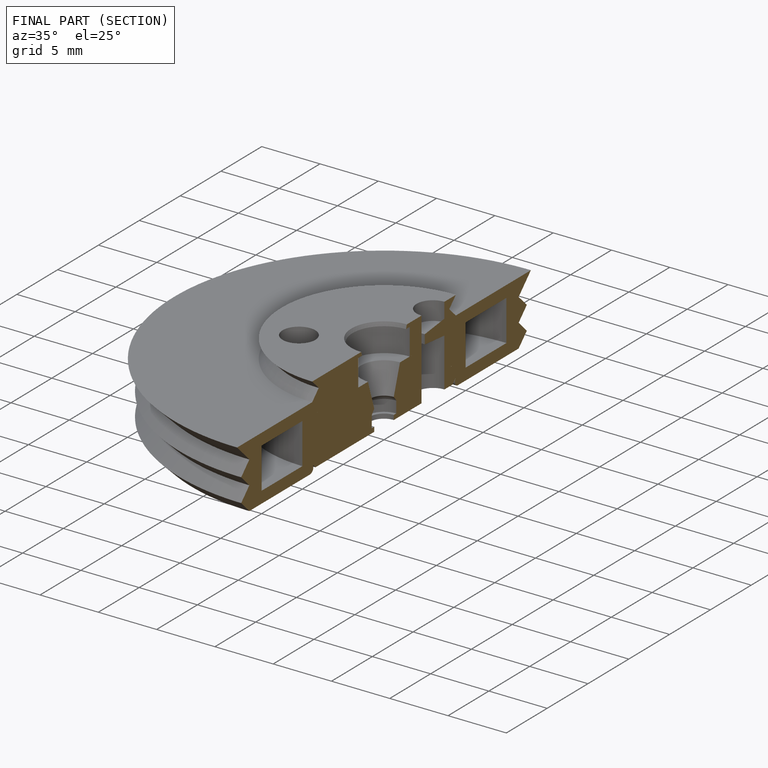
[diagram: finished part — half-section view (interior)]
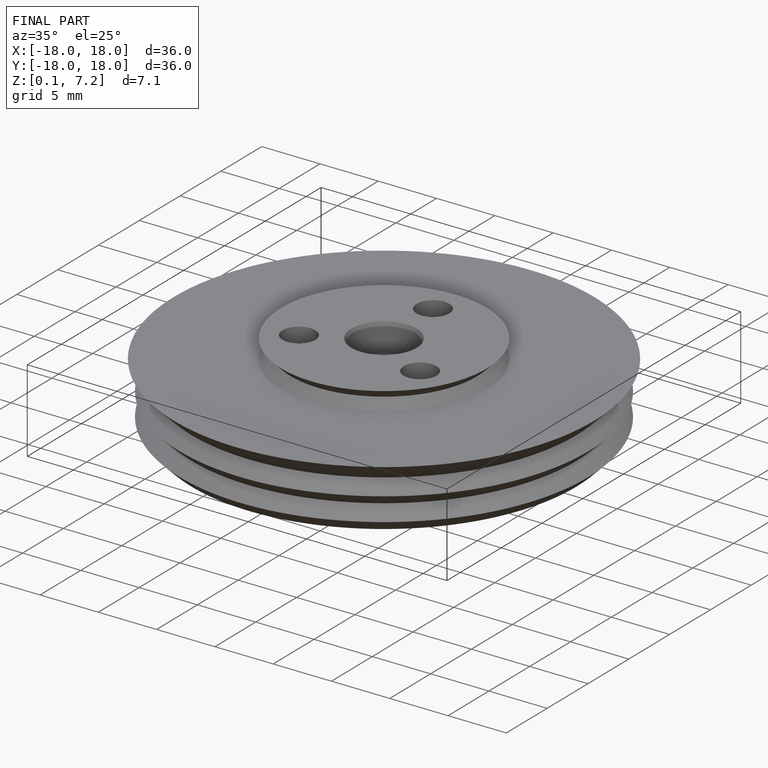
[diagram: finished part — iso view with bounding-box wireframe]
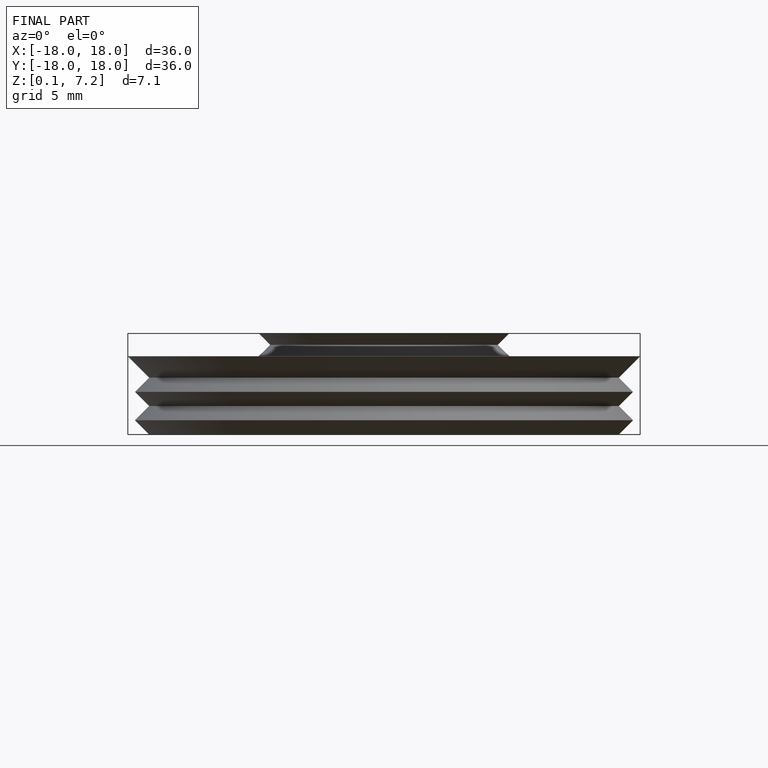
[diagram: finished part — front view with bounding-box wireframe]
